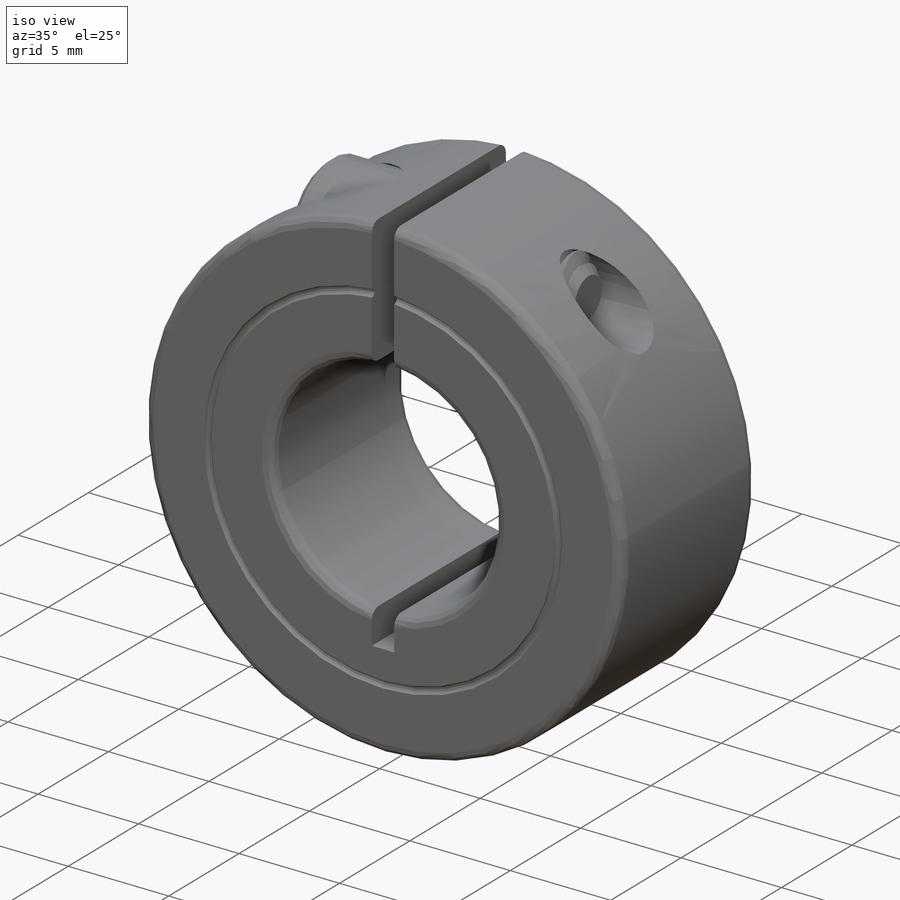
[diagram: iso view]
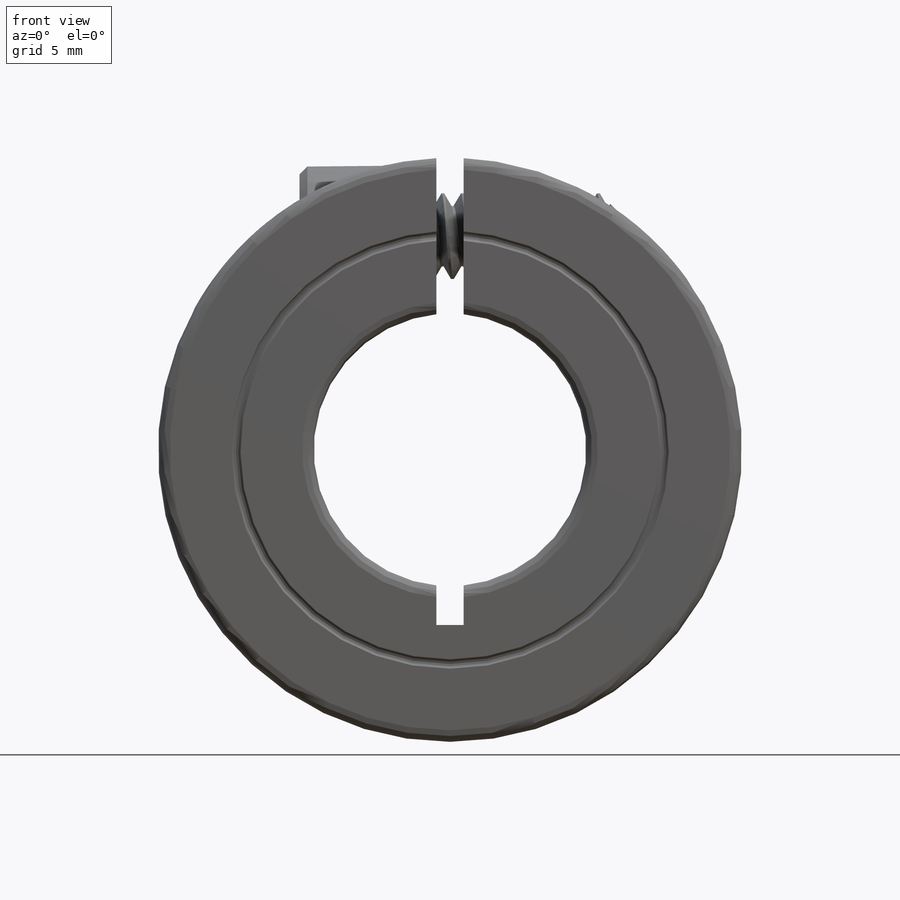
[diagram: front view]
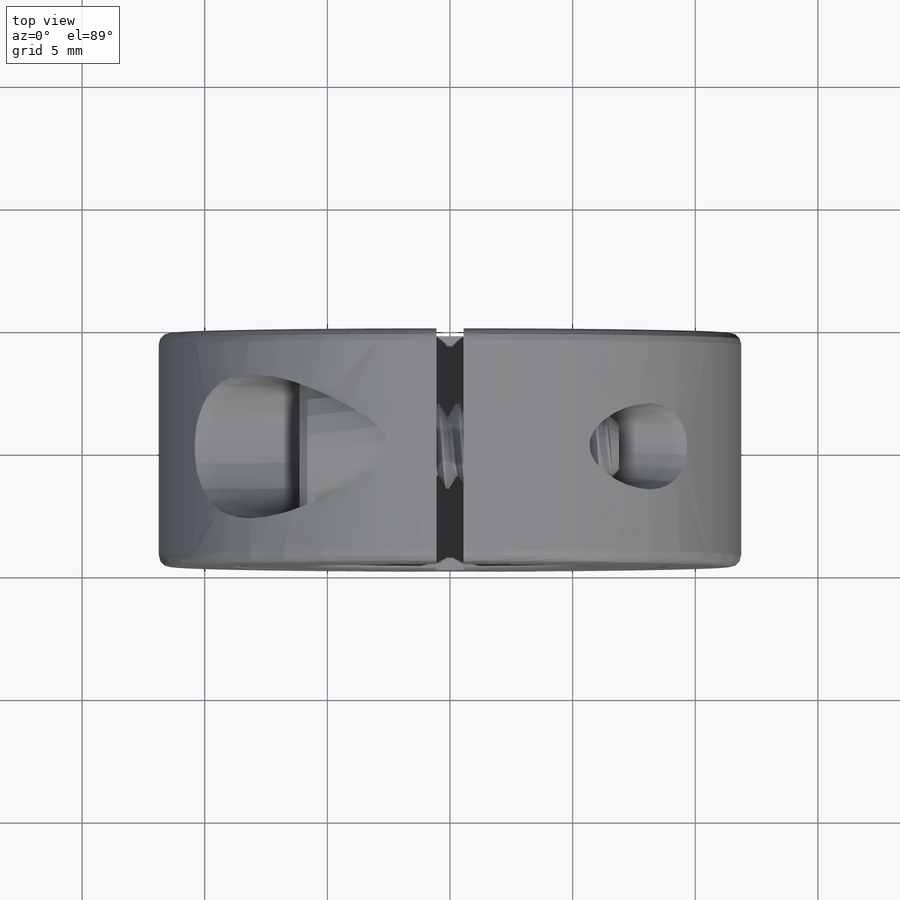
[diagram: top view]
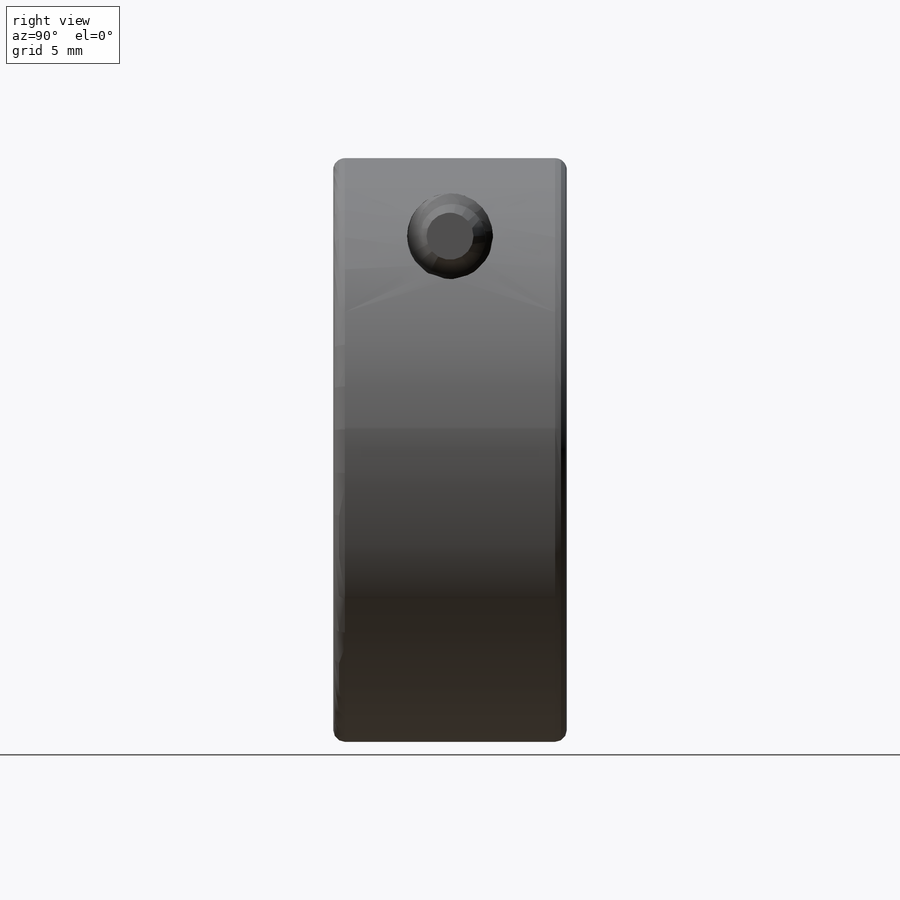
[diagram: right view]
SOLIDWORKS PART (.sldprt)
format: sldprt  version: not decoded by parser v0  size: 729,600 bytes
history: native  units: mm
features: sketch x7, cut_revolve x2, chamfer x2, material x1, extrude x1, fillet x1, revolve x1, cut_extrude x1, helix x1, sweep x1 (+15 scaffold rows collapsed)
feature tree (33):
  scaffold x15  (default folders/planes/origin — collapsed)
  material  "Material <not specified>"
  sketch  "Sketch1"  dims[c1.Bore Dia=11.1125mm c1.OD=23.8125mm c1.Separation=~0.66675mm c2.Separation=~1.11125mm c2.D1=~20.634807mm]
  extrude  "Extrude1"  Depth=9.525mm Width=9.525mm
  fillet  "Fillet1"  Radius=0.47625mm
  sketch  "Sketch2"  dims[D1=0.1905mm D2=17.4625mm]
  cut_revolve  "Cut-Revolve1"  Angle=360deg
  sketch  "Sketch3"  dims[c1.Set Screw Dia=9.525mm c1.D1=9.525mm c1.D2=15.875mm c2.D1=7.9375mm c2.D2=60.325mm c2.D3=1.27mm c3.D2=12.7mm c3.D4=~12.03325mm c3.D3=~1.984375mm c3.Screw Dia=7.9375mm c3.D5=~2.012184mm c3.D6=~2.31775mm c3.D7=4.6355mm c4.D6=~2.651125mm c4.D7=~2.651125mm c5.D6=~2.651125mm c5.D7=~2.651125mm c6.D6=4.6355mm c6.D3=7.9375mm c6.D5=27.5082mm c7.D3=~5.044275mm c7.D2=~6.016625mm c7.D1=~14.036067mm c8.D2=9.525mm c8.D3=~14.036067mm c8.D4=~12.03325mm c8.D1=27.5082mm c9.D2=~16.934473mm c9.D4=5.8674mm c9.Screw Dia=3.5052mm c10.D2=2.6289mm]
  cut_revolve  "Cut-Revolve2"  Angle=360deg
  sketch  "Sketch4"  dims[c1.Head Ht=~17.30375mm c1.D2=2.54mm c1.Screw Lg=22.225mm c2.Head Ht=3.5052mm c2.Head Dia=5.7404mm c2.Screw Lg=25.4mm c3.Screw Lg=9.525mm c3.D2=25.4mm]
  revolve  "Revolve1"  Angle=360deg
  sketch  "Sketch5"  dims[Hex=~2.778125mm]
  cut_extrude  "Cut-Extrude1"  Depth=2.778125mm
  chamfer  "Chamfer1"  Distance=0.3175mm Angle=45deg
  sketch  "Sketch6"
  helix  "Helix/Spiral1"  Pitch=9.525mm Height=9.525mm
  sketch  "Sketch7"  dims[D1=~0.79375mm D2=~0.099219mm D3=~0.114568mm]
  chamfer  "Chamfer2"  Distance=0.79375mm Angle=45deg
  sweep  "Cut-Sweep1"
decode coverage: 15 of 17 modeling features carry decoded parameters
note: ~ marks probable driven/reference dimensions
note: suppression state not decoded; provenance and decode notes live in map.json
